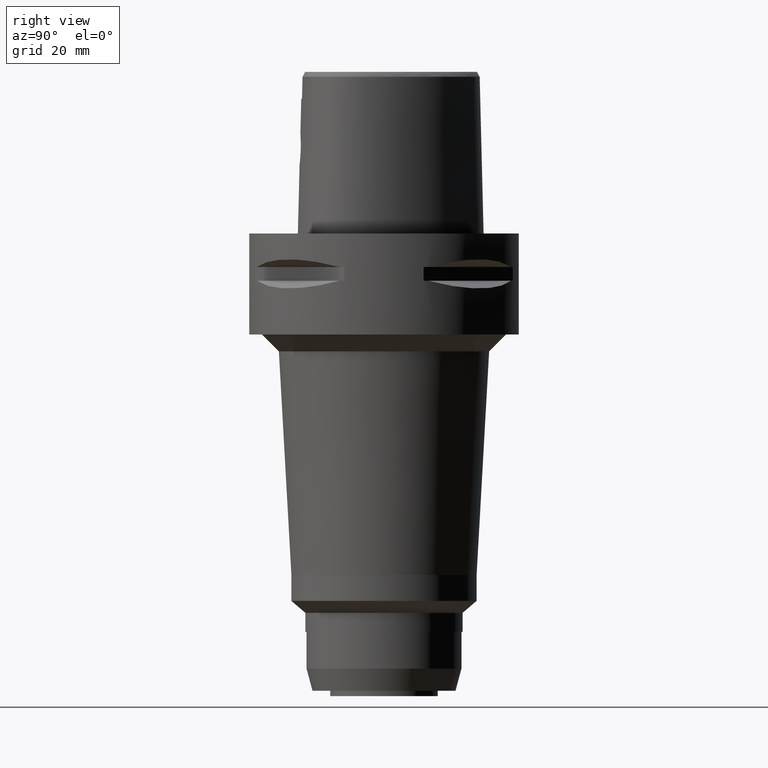
[diagram: clean part render]
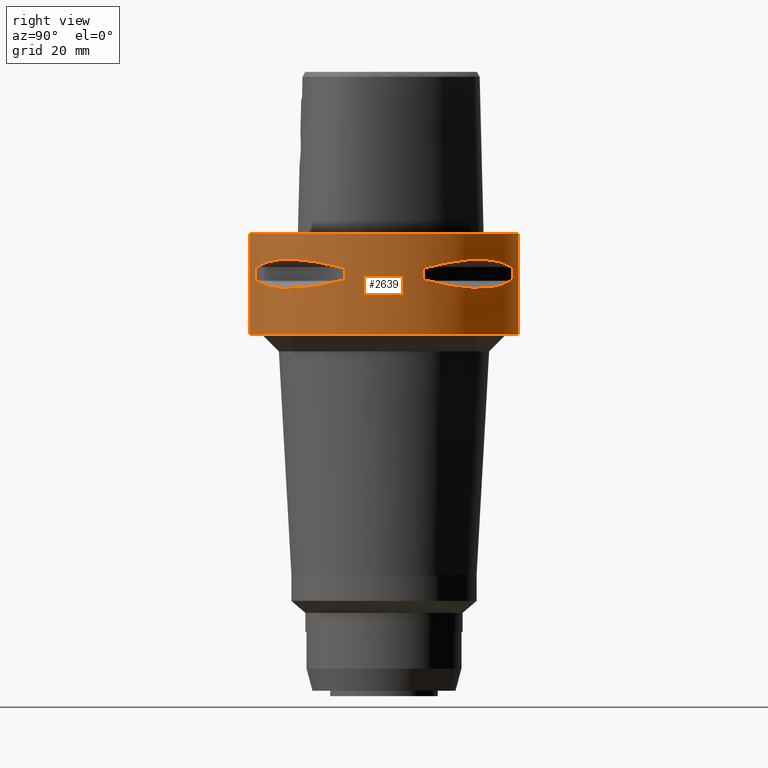
[diagram: same view with one face highlighted and labeled with its STEP entity id]
A machine part, right view. The second image highlights one B-rep face of the part: STEP entity #2639.
In plain terms, the highlighted cylindrical surface (partial cylindrical patch) has radius 40 mm, axis along (0, 0, -1).
Its self-contained STEP definition (entity closure, byte-faithful):
#292=CARTESIAN_POINT('',(0.E0,1.308780034249E-14,0.E0));
#293=DIRECTION('',(0.E0,0.E0,-1.E0));
#294=DIRECTION('',(0.E0,1.E0,0.E0));
#295=AXIS2_PLACEMENT_3D('',#292,#293,#294);
#384=DIRECTION('',(0.E0,0.E0,-1.E0));
#385=VECTOR('',#384,3.E1);
#386=CARTESIAN_POINT('',(0.E0,-4.E1,0.E0));
#387=LINE('',#386,#385);
#463=DIRECTION('',(0.E0,0.E0,-1.E0));
#464=VECTOR('',#463,3.E1);
#465=CARTESIAN_POINT('',(0.E0,4.E1,0.E0));
#466=LINE('',#465,#464);
#470=CARTESIAN_POINT('',(3.774622163927E1,-1.323717311056E1,-9.950000000002E0));
#471=CARTESIAN_POINT('',(3.668564587161E1,-1.626143876435E1,-9.148326960991E0));
#472=CARTESIAN_POINT('',(3.397359084062E1,-2.171906657626E1,-8.027451566833E0));
#473=CARTESIAN_POINT('',(2.850324251697E1,-2.850324251697E1,-7.491083688204E0));
#474=CARTESIAN_POINT('',(2.171906657626E1,-3.397359084062E1,-8.027451566833E0));
#475=CARTESIAN_POINT('',(1.626143876435E1,-3.668564587161E1,-9.148326960991E0));
#476=CARTESIAN_POINT('',(1.323717311056E1,-3.774622163927E1,-9.950000000002E0));
#481=DIRECTION('',(0.E0,0.E0,-1.E0));
#482=VECTOR('',#481,4.1E0);
#483=CARTESIAN_POINT('',(1.176033600281E1,-3.823211342708E1,-9.95E0));
#484=LINE('',#483,#482);
#488=CARTESIAN_POINT('',(1.323717311056E1,-3.774622163927E1,-1.405E1));
#489=CARTESIAN_POINT('',(1.626143876435E1,-3.668564587161E1,-1.485167303901E1));
#490=CARTESIAN_POINT('',(2.171906657626E1,-3.397359084062E1,-1.597254843317E1));
#491=CARTESIAN_POINT('',(2.850324251697E1,-2.850324251697E1,-1.650891631180E1));
#492=CARTESIAN_POINT('',(3.397359084062E1,-2.171906657626E1,-1.597254843317E1));
#493=CARTESIAN_POINT('',(3.668564587161E1,-1.626143876435E1,-1.485167303901E1));
#494=CARTESIAN_POINT('',(3.774622163927E1,-1.323717311056E1,-1.405E1));
#499=DIRECTION('',(0.E0,0.E0,1.E0));
#500=VECTOR('',#499,4.1E0);
#501=CARTESIAN_POINT('',(3.823211342708E1,-1.176033600281E1,-1.405E1));
#502=LINE('',#501,#500);
#506=CARTESIAN_POINT('',(1.323717311056E1,3.774622163927E1,-9.950000000002E0));
#507=CARTESIAN_POINT('',(1.626143876435E1,3.668564587161E1,-9.148326960991E0));
#508=CARTESIAN_POINT('',(2.171906657626E1,3.397359084062E1,-8.027451566833E0));
#509=CARTESIAN_POINT('',(2.850324251697E1,2.850324251697E1,-7.491083688204E0));
#510=CARTESIAN_POINT('',(3.397359084062E1,2.171906657626E1,-8.027451566833E0));
#511=CARTESIAN_POINT('',(3.668564587161E1,1.626143876435E1,-9.148326960991E0));
#512=CARTESIAN_POINT('',(3.774622163927E1,1.323717311056E1,-9.950000000002E0));
#517=DIRECTION('',(0.E0,0.E0,-1.E0));
#518=VECTOR('',#517,4.1E0);
#519=CARTESIAN_POINT('',(3.823211342708E1,1.176033600281E1,-9.95E0));
#520=LINE('',#519,#518);
#524=CARTESIAN_POINT('',(3.774622163927E1,1.323717311056E1,-1.405E1));
#525=CARTESIAN_POINT('',(3.668564587161E1,1.626143876435E1,-1.485167303901E1));
#526=CARTESIAN_POINT('',(3.397359084062E1,2.171906657626E1,-1.597254843317E1));
#527=CARTESIAN_POINT('',(2.850324251697E1,2.850324251697E1,-1.650891631180E1));
#528=CARTESIAN_POINT('',(2.171906657626E1,3.397359084062E1,-1.597254843317E1));
#529=CARTESIAN_POINT('',(1.626143876435E1,3.668564587161E1,-1.485167303901E1));
#530=CARTESIAN_POINT('',(1.323717311056E1,3.774622163927E1,-1.405E1));
#535=DIRECTION('',(0.E0,0.E0,1.E0));
#536=VECTOR('',#535,4.1E0);
#537=CARTESIAN_POINT('',(1.176033600281E1,3.823211342708E1,-1.405E1));
#538=LINE('',#537,#536);
#542=CARTESIAN_POINT('',(0.E0,1.308780034249E-14,-3.E1));
#543=DIRECTION('',(0.E0,0.E0,1.E0));
#544=DIRECTION('',(0.E0,-1.E0,0.E0));
#545=AXIS2_PLACEMENT_3D('',#542,#543,#544);
#1364=CARTESIAN_POINT('',(0.E0,1.308780034249E-14,-9.95E0));
#1365=DIRECTION('',(0.E0,0.E0,1.E0));
#1366=DIRECTION('',(9.436555409818E-1,-3.309293277639E-1,0.E0));
#1367=AXIS2_PLACEMENT_3D('',#1364,#1365,#1366);
#1372=CARTESIAN_POINT('',(0.E0,1.308780034249E-14,-9.95E0));
#1373=DIRECTION('',(0.E0,0.E0,1.E0));
#1374=DIRECTION('',(2.940084000703E-1,-9.558028356770E-1,0.E0));
#1375=AXIS2_PLACEMENT_3D('',#1372,#1373,#1374);
#1394=CARTESIAN_POINT('',(0.E0,1.308780034249E-14,-1.405E1));
#1395=DIRECTION('',(0.E0,0.E0,-1.E0));
#1396=DIRECTION('',(9.558028356770E-1,-2.940084000703E-1,0.E0));
#1397=AXIS2_PLACEMENT_3D('',#1394,#1395,#1396);
#1402=CARTESIAN_POINT('',(0.E0,1.308780034249E-14,-1.405E1));
#1403=DIRECTION('',(0.E0,0.E0,-1.E0));
#1404=DIRECTION('',(3.309293277639E-1,-9.436555409818E-1,0.E0));
#1405=AXIS2_PLACEMENT_3D('',#1402,#1403,#1404);
#1424=CARTESIAN_POINT('',(0.E0,1.308780034249E-14,-9.95E0));
#1425=DIRECTION('',(0.E0,0.E0,1.E0));
#1426=DIRECTION('',(3.309293277639E-1,9.436555409818E-1,0.E0));
#1427=AXIS2_PLACEMENT_3D('',#1424,#1425,#1426);
#1432=CARTESIAN_POINT('',(0.E0,1.308780034249E-14,-9.95E0));
#1433=DIRECTION('',(0.E0,0.E0,1.E0));
#1434=DIRECTION('',(9.558028356770E-1,2.940084000703E-1,0.E0));
#1435=AXIS2_PLACEMENT_3D('',#1432,#1433,#1434);
#1454=CARTESIAN_POINT('',(0.E0,1.308780034249E-14,-1.405E1));
#1455=DIRECTION('',(0.E0,0.E0,-1.E0));
#1456=DIRECTION('',(2.940084000703E-1,9.558028356770E-1,0.E0));
#1457=AXIS2_PLACEMENT_3D('',#1454,#1455,#1456);
#1462=CARTESIAN_POINT('',(0.E0,1.308780034249E-14,-1.405E1));
#1463=DIRECTION('',(0.E0,0.E0,-1.E0));
#1464=DIRECTION('',(9.436555409818E-1,3.309293277639E-1,0.E0));
#1465=AXIS2_PLACEMENT_3D('',#1462,#1463,#1464);
#1626=CARTESIAN_POINT('',(0.E0,-4.E1,0.E0));
#1627=CARTESIAN_POINT('',(0.E0,4.E1,0.E0));
#1628=VERTEX_POINT('',#1626);
#1629=VERTEX_POINT('',#1627);
#1630=CARTESIAN_POINT('',(0.E0,4.E1,-3.E1));
#1631=VERTEX_POINT('',#1630);
#1632=CARTESIAN_POINT('',(0.E0,-4.E1,-3.E1));
#1633=VERTEX_POINT('',#1632);
#1660=VERTEX_POINT('',#470);
#1661=VERTEX_POINT('',#476);
#1662=CARTESIAN_POINT('',(1.176033600281E1,-3.823211342708E1,-9.95E0));
#1663=VERTEX_POINT('',#1662);
#1664=CARTESIAN_POINT('',(1.176033600281E1,-3.823211342708E1,-1.405E1));
#1665=VERTEX_POINT('',#1664);
#1666=CARTESIAN_POINT('',(1.323717311056E1,-3.774622163927E1,-1.405E1));
#1667=VERTEX_POINT('',#1666);
#1668=VERTEX_POINT('',#494);
#1669=CARTESIAN_POINT('',(3.823211342708E1,-1.176033600281E1,-1.405E1));
#1670=VERTEX_POINT('',#1669);
#1671=CARTESIAN_POINT('',(3.823211342708E1,-1.176033600281E1,-9.95E0));
#1672=VERTEX_POINT('',#1671);
#1673=VERTEX_POINT('',#506);
#1674=VERTEX_POINT('',#512);
#1675=CARTESIAN_POINT('',(3.823211342708E1,1.176033600281E1,-9.95E0));
#1676=VERTEX_POINT('',#1675);
#1677=CARTESIAN_POINT('',(3.823211342708E1,1.176033600281E1,-1.405E1));
#1678=VERTEX_POINT('',#1677);
#1679=CARTESIAN_POINT('',(3.774622163927E1,1.323717311056E1,-1.405E1));
#1680=VERTEX_POINT('',#1679);
#1681=VERTEX_POINT('',#530);
#1682=CARTESIAN_POINT('',(1.176033600281E1,3.823211342708E1,-1.405E1));
#1683=VERTEX_POINT('',#1682);
#1684=CARTESIAN_POINT('',(1.176033600281E1,3.823211342708E1,-9.95E0));
#1685=VERTEX_POINT('',#1684);
#2591=CARTESIAN_POINT('',(0.E0,1.308780034249E-14,6.87E0));
#2592=DIRECTION('',(0.E0,0.E0,-1.E0));
#2593=DIRECTION('',(0.E0,-1.E0,0.E0));
#2594=AXIS2_PLACEMENT_3D('',#2591,#2592,#2593);
#2595=CYLINDRICAL_SURFACE('',#2594,4.E1);
#2596=ORIENTED_EDGE('',*,*,#2545,.T.);
#2598=ORIENTED_EDGE('',*,*,#2597,.F.);
#2599=ORIENTED_EDGE('',*,*,#2548,.F.);
#2600=ORIENTED_EDGE('',*,*,#2530,.F.);
#2601=EDGE_LOOP('',(#2596,#2598,#2599,#2600));
#2602=FACE_OUTER_BOUND('',#2601,.F.);
#2604=ORIENTED_EDGE('',*,*,#2603,.T.);
#2606=ORIENTED_EDGE('',*,*,#2605,.F.);
#2608=ORIENTED_EDGE('',*,*,#2607,.T.);
#2610=ORIENTED_EDGE('',*,*,#2609,.F.);
#2612=ORIENTED_EDGE('',*,*,#2611,.T.);
#2614=ORIENTED_EDGE('',*,*,#2613,.F.);
#2616=ORIENTED_EDGE('',*,*,#2615,.T.);
#2618=ORIENTED_EDGE('',*,*,#2617,.F.);
#2619=EDGE_LOOP('',(#2604,#2606,#2608,#2610,#2612,#2614,#2616,#2618));
#2620=FACE_BOUND('',#2619,.F.);
#2622=ORIENTED_EDGE('',*,*,#2621,.T.);
#2624=ORIENTED_EDGE('',*,*,#2623,.F.);
#2626=ORIENTED_EDGE('',*,*,#2625,.T.);
#2628=ORIENTED_EDGE('',*,*,#2627,.F.);
#2630=ORIENTED_EDGE('',*,*,#2629,.T.);
#2632=ORIENTED_EDGE('',*,*,#2631,.F.);
#2634=ORIENTED_EDGE('',*,*,#2633,.T.);
#2636=ORIENTED_EDGE('',*,*,#2635,.F.);
#2637=EDGE_LOOP('',(#2622,#2624,#2626,#2628,#2630,#2632,#2634,#2636));
#2638=FACE_BOUND('',#2637,.F.);
#296=CIRCLE('',#295,4.E1);
#477=B_SPLINE_CURVE_WITH_KNOTS('',3,(#470,#471,#472,#473,#474,#475,#476),
.UNSPECIFIED.,.F.,.F.,(4,1,1,1,4),(0.E0,2.5E-1,5.E-1,7.5E-1,1.E0),
.UNSPECIFIED.);
#495=B_SPLINE_CURVE_WITH_KNOTS('',3,(#488,#489,#490,#491,#492,#493,#494),
.UNSPECIFIED.,.F.,.F.,(4,1,1,1,4),(0.E0,2.5E-1,5.E-1,7.5E-1,1.E0),
.UNSPECIFIED.);
#513=B_SPLINE_CURVE_WITH_KNOTS('',3,(#506,#507,#508,#509,#510,#511,#512),
.UNSPECIFIED.,.F.,.F.,(4,1,1,1,4),(0.E0,2.5E-1,5.E-1,7.5E-1,1.E0),
.UNSPECIFIED.);
#531=B_SPLINE_CURVE_WITH_KNOTS('',3,(#524,#525,#526,#527,#528,#529,#530),
.UNSPECIFIED.,.F.,.F.,(4,1,1,1,4),(0.E0,2.5E-1,5.E-1,7.5E-1,1.E0),
.UNSPECIFIED.);
#546=CIRCLE('',#545,4.E1);
#1368=CIRCLE('',#1367,4.E1);
#1376=CIRCLE('',#1375,4.E1);
#1398=CIRCLE('',#1397,4.E1);
#1406=CIRCLE('',#1405,4.E1);
#1428=CIRCLE('',#1427,4.E1);
#1436=CIRCLE('',#1435,4.E1);
#1458=CIRCLE('',#1457,4.E1);
#1466=CIRCLE('',#1465,4.E1);
#2530=EDGE_CURVE('',#1629,#1628,#296,.T.);
#2545=EDGE_CURVE('',#1629,#1631,#466,.T.);
#2548=EDGE_CURVE('',#1628,#1633,#387,.T.);
#2597=EDGE_CURVE('',#1633,#1631,#546,.T.);
#2603=EDGE_CURVE('',#1660,#1661,#477,.T.);
#2605=EDGE_CURVE('',#1663,#1661,#1376,.T.);
#2607=EDGE_CURVE('',#1663,#1665,#484,.T.);
#2609=EDGE_CURVE('',#1667,#1665,#1406,.T.);
#2611=EDGE_CURVE('',#1667,#1668,#495,.T.);
#2613=EDGE_CURVE('',#1670,#1668,#1398,.T.);
#2615=EDGE_CURVE('',#1670,#1672,#502,.T.);
#2617=EDGE_CURVE('',#1660,#1672,#1368,.T.);
#2621=EDGE_CURVE('',#1673,#1674,#513,.T.);
#2623=EDGE_CURVE('',#1676,#1674,#1436,.T.);
#2625=EDGE_CURVE('',#1676,#1678,#520,.T.);
#2627=EDGE_CURVE('',#1680,#1678,#1466,.T.);
#2629=EDGE_CURVE('',#1680,#1681,#531,.T.);
#2631=EDGE_CURVE('',#1683,#1681,#1458,.T.);
#2633=EDGE_CURVE('',#1683,#1685,#538,.T.);
#2635=EDGE_CURVE('',#1673,#1685,#1428,.T.);
#2639=ADVANCED_FACE('',(#2602,#2620,#2638),#2595,.T.);